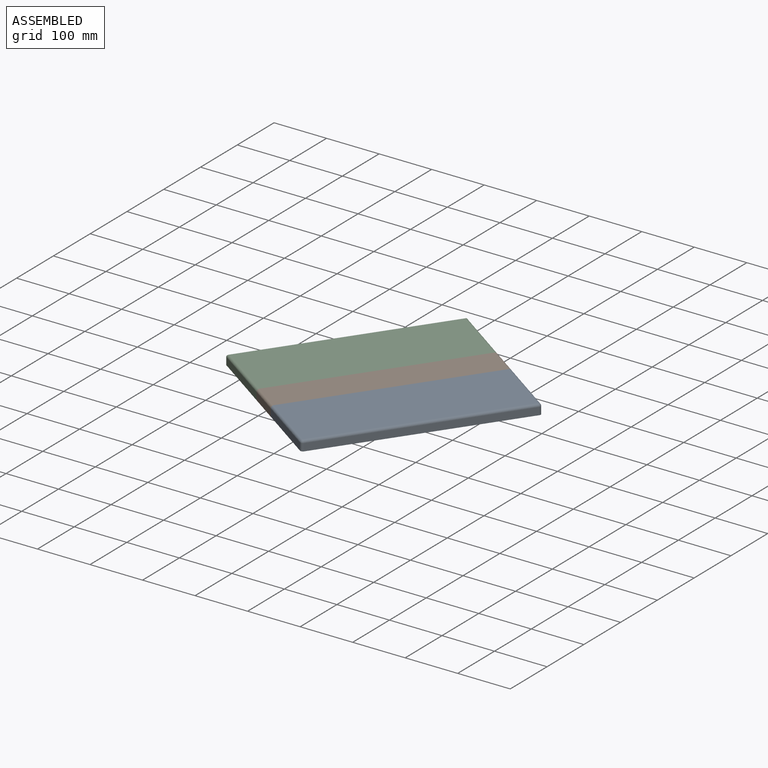
[diagram: assembled view]
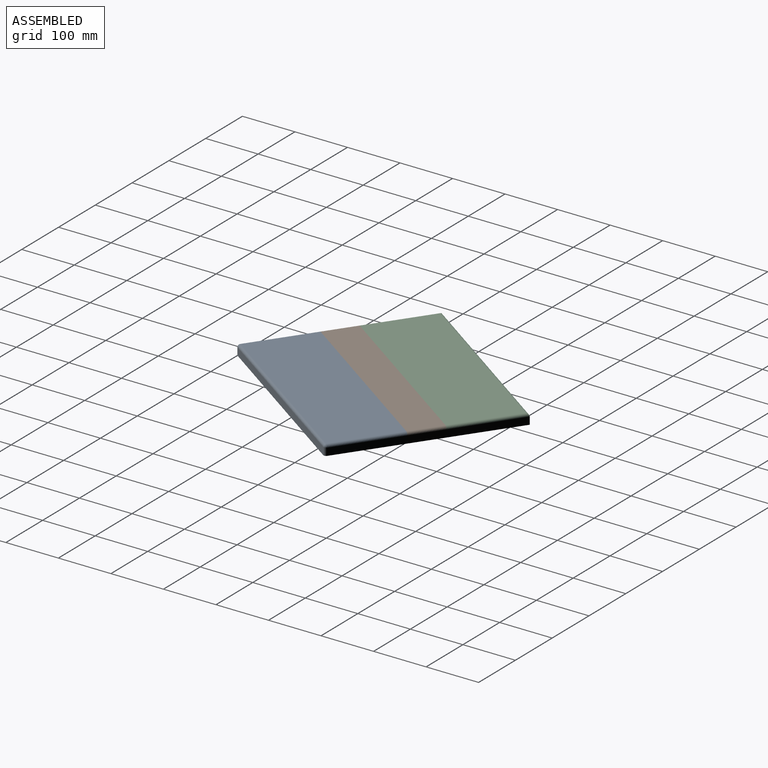
[diagram: assembled view, second angle]
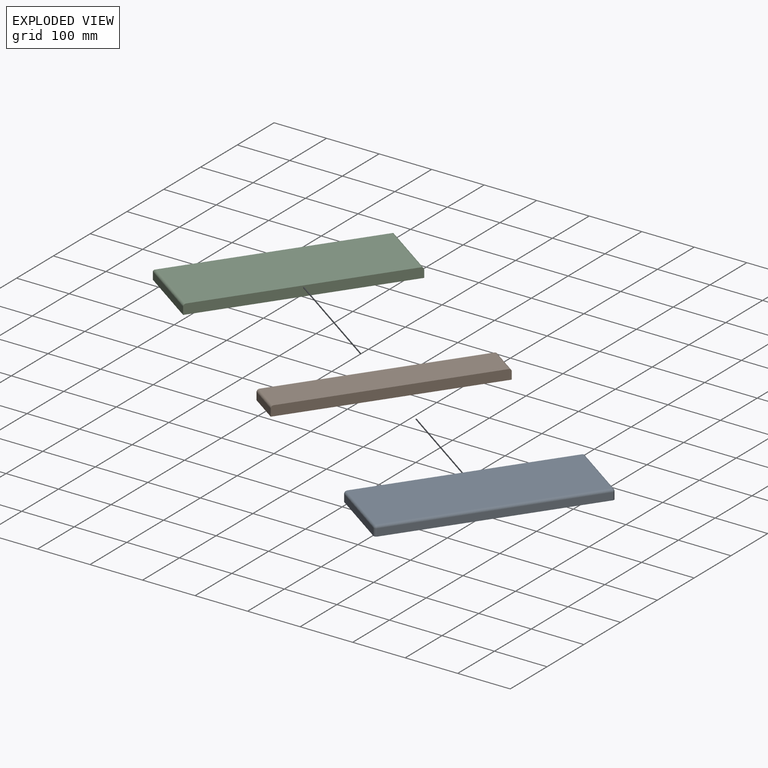
[diagram: exploded view]
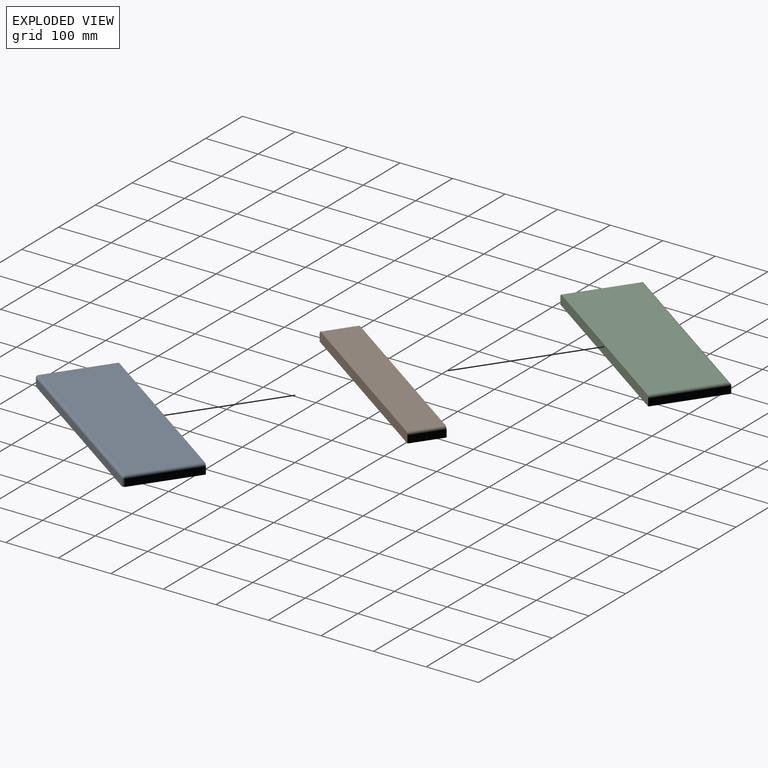
[diagram: exploded view, second angle]
ASSEMBLY  parts=3 mates=3
PART A: 13 faces, bbox 400x138x19 mm
  f0: plane 400x19mm, normal (0,1,0), area 7589.3mm2, adj f1,f3,f4,f5,f7,f10
  f1: plane 133x14mm, normal (-1,0,0), area 1862mm2, adj f0,f5,f10,f12
  f2: plane 390x14mm, normal (0,-1,0), area 5460mm2, adj f5,f6,f9,f12
  f3: plane 133x14mm, normal (1,0,0), area 1862mm2, adj f0,f5,f7,f9
  f4: plane 390x133mm, normal (0,0,1), area 51870mm2, adj f0,f6,f7,f10
  f5: plane 400x138mm, normal (0,0,-1), area 55189.3mm2, adj f0,f1,f2,f3,f9,f12
  f6: cylinder r=5mm len=390mm, axis (-1,0,0), area 3063.1mm2, adj f2,f4,f8,f11
  f7: cylinder r=5mm len=133mm, axis (0,-1,0), area 1044.6mm2, adj f0,f3,f4,f8
  f8: sphere r=5mm, area 39.3mm2, adj f6,f7,f9
  f9: cylinder r=5mm len=14mm, axis (0,0,1), area 110mm2, adj f2,f3,f5,f8
  f10: cylinder r=5mm len=133mm, axis (0,1,0), area 1044.6mm2, adj f0,f1,f4,f11
  f11: sphere r=5mm, area 39.3mm2, adj f6,f10,f12
  f12: cylinder r=5mm len=14mm, axis (0,0,-1), area 110mm2, adj f1,f2,f5,f11
PART B: 8 faces, bbox 400x65x19 mm
  f0: plane 400x19mm, normal (0,1,0), area 7589.3mm2, adj f1,f3,f4,f5,f6,f7
  f1: plane 65x14mm, normal (-1,0,0), area 910mm2, adj f0,f2,f5,f6
  f2: plane 400x19mm, normal (0,-1,0), area 7589.3mm2, adj f1,f3,f4,f5,f6,f7
  f3: plane 65x14mm, normal (1,0,0), area 910mm2, adj f0,f2,f5,f7
  f4: plane 390x65mm, normal (0,0,1), area 25350mm2, adj f0,f2,f6,f7
  f5: plane 400x65mm, normal (0,0,-1), area 26000mm2, adj f0,f1,f2,f3
  f6: cylinder r=5mm len=65mm, axis (0,1,0), area 510.5mm2, adj f0,f1,f2,f4
  f7: cylinder r=5mm len=65mm, axis (0,-1,0), area 510.5mm2, adj f0,f2,f3,f4
PART C: 9 faces, bbox 400x138x19 mm
  f0: plane 138x14mm, normal (-1,0,0), area 1932mm2, adj f1,f3,f5,f6
  f1: plane 400x19mm, normal (0,-1,0), area 7589.3mm2, adj f0,f2,f4,f5,f6,f8
  f2: plane 138x14mm, normal (1,0,0), area 1932mm2, adj f1,f3,f5,f8
  f3: plane 400x14mm, normal (0,1,0), area 5600mm2, adj f0,f2,f5,f7
  f4: plane 390x133mm, normal (0,0,1), area 51870mm2, adj f1,f6,f7,f8
  f5: plane 400x138mm, normal (0,0,-1), area 55200mm2, adj f0,f1,f2,f3
  f6: cylinder r=5mm len=138mm, axis (0,1,0), area 1069.6mm2, adj f0,f1,f4,f7
  f7: cylinder r=5mm len=400mm, axis (1,0,0), area 3113.1mm2, adj f3,f4,f6,f8
  f8: cylinder r=5mm len=138mm, axis (0,-1,0), area 1069.6mm2, adj f1,f2,f4,f7
PLACE A rot(axis=(0,0,1),55deg) t=(403.45,266.83,105.74)mm
PLACE B rot(axis=(0,0,1),55deg) t=(160.85,530.24,105.74)mm
PLACE C rot(axis=(0,0,1),55deg) t=(301.05,29.75,105.74)mm
MATE parallel B.f0 <-> C.f1  axis (-0.82,0.57,0) through (-7.05,290.45,115.23)mm
MATE parallel C.f1 <-> B.f0  axis (0.82,-0.57,0) through (-7.05,290.45,115.23)mm
MATE parallel B.f2 <-> A.f0  axis (0.82,-0.57,0) through (46.19,253.16,115.23)mm
